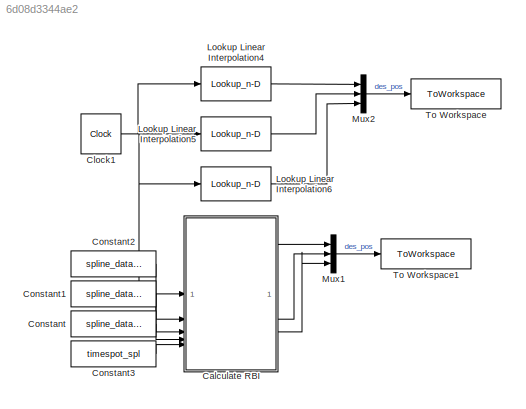
MODEL slx_6d08d3344ae2
KIND model
CONFIG MaxStep = 0.01
CONFIG SolverName = VariableStepAuto
CONFIG StopFcn = figure(77)\nplot3(out.xyz.Data(:,1),out.xyz.Data(:,2),out.xyz.Data(:,3),'DisplayName','Simulink Interpolation');\nhold on\nplot3(out.xyzML.Data(:,1),out.xyzML.Data(:,2),out.xyzML.Data(:,3),'DisplayName','MATLAB Interpolation');\nhold off\naxis equal\nah = gca;\nah.Clipping = 'off';\nbox on\ngrid on\nlegend('Location','Best')\ntitle('Show Interpolated Path');\n
CONFIG StopTime = timespot_spl(end)+4
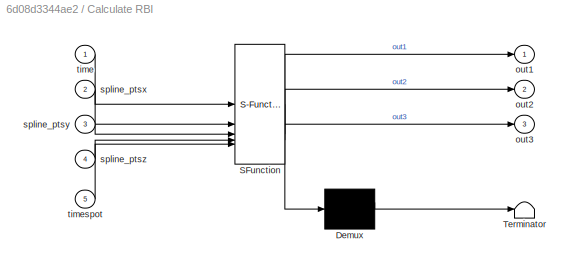
BLOCK [SubSystem] Calculate RBI
  ErrorFcn = Stateflow.Translate.translate
  PermitHierarchicalResolution = ExplicitOnly
  SFBlockType = MATLAB Function
  TreatAsAtomicUnit = on
BLOCK [Demux] Calculate RBI/ Demux 
  Outputs = 1
BLOCK [S-Function] Calculate RBI/ SFunction 
  EnableBusSupport = off
  FunctionName = sf_sfun
  PortCounts = [5 4]
  SFcnIsStateOwnerBlock = off
  SFunctionDeploymentMode = off
  Tag = Stateflow S-Function 7
BLOCK [Terminator] Calculate RBI/ Terminator 
BLOCK [Outport] Calculate RBI/out1
BLOCK [Outport] Calculate RBI/out2
  Port = 2
BLOCK [Outport] Calculate RBI/out3
  Port = 3
BLOCK [Inport] Calculate RBI/spline_ptsx
  Port = 2
BLOCK [Inport] Calculate RBI/spline_ptsy
  Port = 3
BLOCK [Inport] Calculate RBI/spline_ptsz
  Port = 4
BLOCK [Inport] Calculate RBI/time
BLOCK [Inport] Calculate RBI/timespot
  Port = 5
BLOCK [Clock] Clock1
BLOCK [Constant] Constant
  Value = spline_data(:,3)'
BLOCK [Constant] Constant1
  Value = spline_data(:,2)'
BLOCK [Constant] Constant2
  Value = spline_data(:,1)'
BLOCK [Constant] Constant3
  Value = timespot_spl
BLOCK [Lookup_n-D] Lookup Linear Interpolation4
  BreakpointsForDimension1 = timespot_spl
  ExtrapMethod = Clip
  InputPortMap = u0
  InternalRulePriority = Speed
  InterpMethod = Cubic spline
  NumberOfTableDimensions = 1
  RndMeth = Simplest
  Table = spline_data(:,1)
BLOCK [Lookup_n-D] Lookup Linear Interpolation5
  BreakpointsForDimension1 = timespot_spl
  ExtrapMethod = Clip
  InputPortMap = u0
  InternalRulePriority = Speed
  InterpMethod = Cubic spline
  NumberOfTableDimensions = 1
  RndMeth = Simplest
  Table = spline_data(:,2)
BLOCK [Lookup_n-D] Lookup Linear Interpolation6
  BreakpointsForDimension1 = timespot_spl
  ExtrapMethod = Clip
  InputPortMap = u0
  InternalRulePriority = Speed
  InterpMethod = Cubic spline
  NumberOfTableDimensions = 1
  RndMeth = Simplest
  Table = spline_data(:,3)
BLOCK [Mux] Mux1
  DisplayOption = bar
  Inputs = 3
BLOCK [Mux] Mux2
  DisplayOption = bar
  Inputs = 3
BLOCK [ToWorkspace] To Workspace
  FixptAsFi = on
  MaxDataPoints = inf
  SampleTime = -1
  SaveFormat = Timeseries
  VariableName = xyz
BLOCK [ToWorkspace] To Workspace1
  FixptAsFi = on
  MaxDataPoints = inf
  SampleTime = -1
  SaveFormat = Timeseries
  VariableName = xyzML
LINE Calculate RBI:1 -> Mux1:1
LINE Calculate RBI:2 -> Mux1:2
LINE Calculate RBI:3 -> Mux1:3
NET Clock1:1 -> Calculate RBI:1, Lookup Linear Interpolation4:1, Lookup Linear Interpolation5:1, Lookup Linear Interpolation6:1
LINE Constant1:1 -> Calculate RBI:3
LINE Constant2:1 -> Calculate RBI:2
LINE Constant3:1 -> Calculate RBI:5
LINE Constant:1 -> Calculate RBI:4
LINE Lookup Linear Interpolation4:1 -> Mux2:1
LINE Lookup Linear Interpolation5:1 -> Mux2:2
LINE Lookup Linear Interpolation6:1 -> Mux2:3
LINE Mux1:1 -> To Workspace1:1
LINE Mux2:1 -> To Workspace:1
note: NET lines group one-source signal fan-out (src -> all destinations, sorted); 1:1 wires keep LINE
CHART Calculate RBI states=1 transitions=1
  STATE_LABEL 'eML_blk_kernel()'
  STATE_LABEL "SCRIPT:\nfunction [out1, out2, out3]  = Calculate_RBI(time, spline_ptsx, spline_ptsy, spline_ptsz, timespot)\n\nout1 = interp1(timespot,spline_ptsx,time,'cubic');\nout2 = interp1(timespot,spline_ptsy,time,'cubic');\nout3 = interp1(timespot,spline_ptsz,time,'cubic');\n\n"
CHART  states=0 transitions=0
